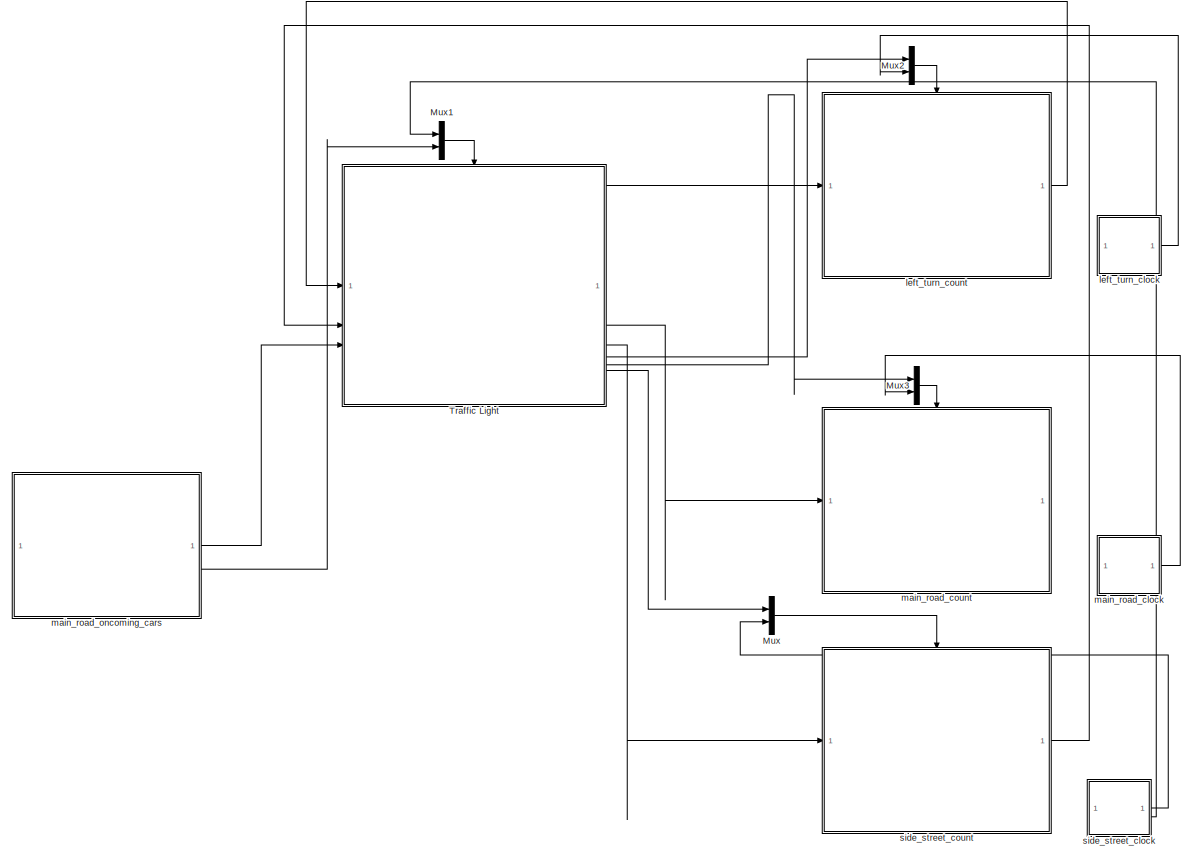
[diagram: root canvas - part 1/2, most of the canvas]
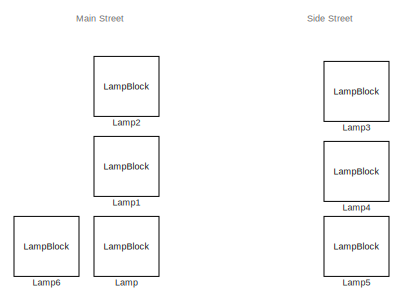
[diagram: root canvas - part 2/2, top right region]
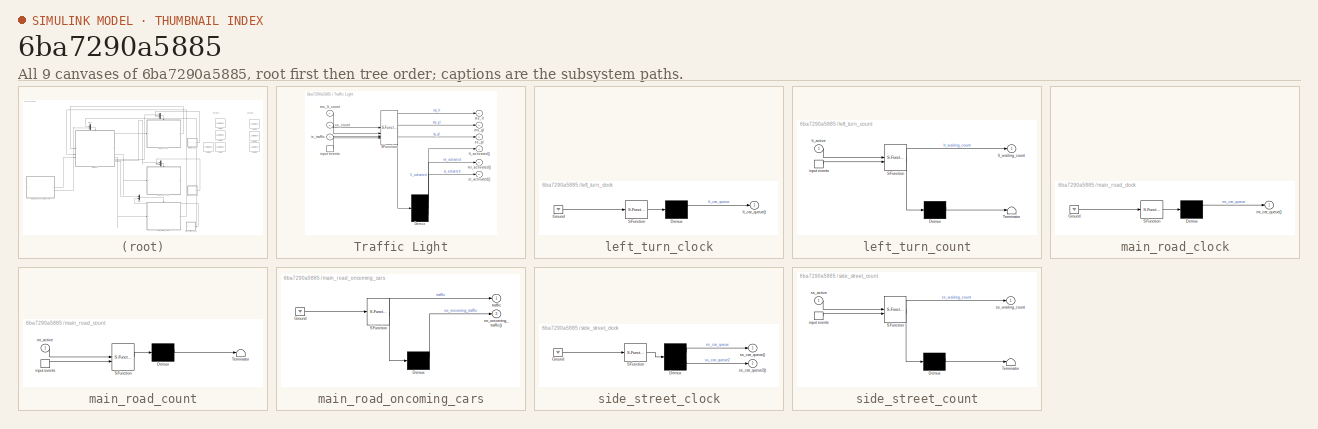
[diagram: thumbnail index - all 9 canvases of the model, root first then tree order]
MODEL slx_6ba7290a5885
KIND model
CONFIG AbsTol = auto
CONFIG EnableMultiTasking = off
CONFIG FixedStep = auto
CONFIG MaxStep = auto
CONFIG MinStep = auto
CONFIG RelTol = 1e-3
CONFIG SampleTimeConstraint = Unconstrained
CONFIG SolverName = VariableStepAuto
CONFIG StartTime = 0.0
CONFIG StopTime = 1000
BLOCK [LampBlock] Lamp
  LabelPosition = Hide
BLOCK [LampBlock] Lamp1
  LabelPosition = Hide
BLOCK [LampBlock] Lamp2
  LabelPosition = Hide
BLOCK [LampBlock] Lamp3
  LabelPosition = Hide
BLOCK [LampBlock] Lamp4
  LabelPosition = Hide
BLOCK [LampBlock] Lamp5
  LabelPosition = Hide
BLOCK [LampBlock] Lamp6
  Icon = TurnSignalLeft
  LabelPosition = Hide
BLOCK [Mux] Mux
  DisplayOption = bar
  Inputs = 2
BLOCK [Mux] Mux1
  DisplayOption = bar
  Inputs = 2
BLOCK [Mux] Mux2
  DisplayOption = bar
  Inputs = 2
BLOCK [Mux] Mux3
  DisplayOption = bar
  Inputs = 2
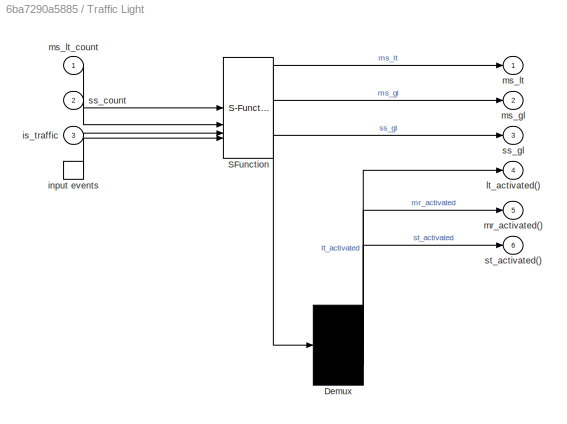
BLOCK [SubSystem] Traffic Light
  ErrorFcn = Stateflow.Translate.translate
  PermitHierarchicalResolution = ExplicitOnly
  SFBlockType = Chart
  TreatAsAtomicUnit = on
BLOCK [Demux] Traffic Light/ Demux 
  Outputs = 3
BLOCK [S-Function] Traffic Light/ SFunction 
  EnableBusSupport = on
  FunctionName = sf_sfun
  PortCounts = [4 4]
  SFcnIsStateOwnerBlock = off
  SFunctionDeploymentMode = off
  Tag = Stateflow S-Function 3
BLOCK [TriggerPort] Traffic Light/input events
  ShowOutputPort = on
  StatesWhenEnabling = held
  TriggerType = function-call
  VariantControl = (inherit)
BLOCK [Inport] Traffic Light/is_traffic
  Port = 3
BLOCK [Outport] Traffic Light/lt_activated()
  Port = 4
BLOCK [Outport] Traffic Light/mr_activated()
  Port = 5
BLOCK [Outport] Traffic Light/ms_gl
  Port = 2
BLOCK [Outport] Traffic Light/ms_lt
BLOCK [Inport] Traffic Light/ms_lt_count
BLOCK [Inport] Traffic Light/ss_count
  Port = 2
BLOCK [Outport] Traffic Light/ss_gl
  Port = 3
BLOCK [Outport] Traffic Light/st_activated()
  Port = 6
BLOCK [SubSystem] left_turn_clock
  ErrorFcn = Stateflow.Translate.translate
  PermitHierarchicalResolution = ExplicitOnly
  SFBlockType = Chart
  TreatAsAtomicUnit = on
BLOCK [Demux] left_turn_clock/ Demux 
  Outputs = 1
BLOCK [Ground] left_turn_clock/ Ground 
BLOCK [S-Function] left_turn_clock/ SFunction 
  EnableBusSupport = on
  FunctionName = sf_sfun
  PortCounts = [1 1]
  SFcnIsStateOwnerBlock = off
  SFunctionDeploymentMode = off
  Tag = Stateflow S-Function 8
BLOCK [Outport] left_turn_clock/lt_car_queue()
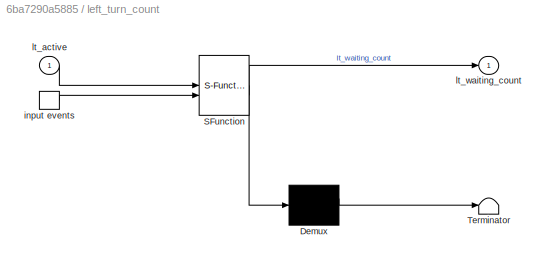
BLOCK [SubSystem] left_turn_count
  ErrorFcn = Stateflow.Translate.translate
  PermitHierarchicalResolution = ExplicitOnly
  SFBlockType = Chart
  TreatAsAtomicUnit = on
BLOCK [Demux] left_turn_count/ Demux 
  Outputs = 1
BLOCK [S-Function] left_turn_count/ SFunction 
  EnableBusSupport = on
  FunctionName = sf_sfun
  PortCounts = [2 2]
  SFcnIsStateOwnerBlock = off
  SFunctionDeploymentMode = off
  Tag = Stateflow S-Function 1
BLOCK [Terminator] left_turn_count/ Terminator 
BLOCK [TriggerPort] left_turn_count/input events
  ShowOutputPort = on
  StatesWhenEnabling = held
  TriggerType = function-call
  VariantControl = (inherit)
BLOCK [Inport] left_turn_count/lt_active
BLOCK [Outport] left_turn_count/lt_waiting_count
BLOCK [SubSystem] main_road_clock
  ErrorFcn = Stateflow.Translate.translate
  PermitHierarchicalResolution = ExplicitOnly
  SFBlockType = Chart
  TreatAsAtomicUnit = on
BLOCK [Demux] main_road_clock/ Demux 
  Outputs = 1
BLOCK [Ground] main_road_clock/ Ground 
BLOCK [S-Function] main_road_clock/ SFunction 
  EnableBusSupport = on
  FunctionName = sf_sfun
  PortCounts = [1 1]
  SFcnIsStateOwnerBlock = off
  SFunctionDeploymentMode = off
  Tag = Stateflow S-Function 7
BLOCK [Outport] main_road_clock/mr_car_queue()
BLOCK [SubSystem] main_road_count
  ErrorFcn = Stateflow.Translate.translate
  PermitHierarchicalResolution = ExplicitOnly
  SFBlockType = Chart
  TreatAsAtomicUnit = on
BLOCK [Demux] main_road_count/ Demux 
  Outputs = 1
BLOCK [S-Function] main_road_count/ SFunction 
  EnableBusSupport = on
  FunctionName = sf_sfun
  PortCounts = [2 1]
  SFcnIsStateOwnerBlock = off
  SFunctionDeploymentMode = off
  Tag = Stateflow S-Function 2
BLOCK [Terminator] main_road_count/ Terminator 
BLOCK [TriggerPort] main_road_count/input events
  ShowOutputPort = on
  StatesWhenEnabling = held
  TriggerType = function-call
  VariantControl = (inherit)
BLOCK [Inport] main_road_count/mr_active
BLOCK [SubSystem] main_road_oncoming_cars
  ErrorFcn = Stateflow.Translate.translate
  PermitHierarchicalResolution = ExplicitOnly
  SFBlockType = Chart
  TreatAsAtomicUnit = on
BLOCK [Demux] main_road_oncoming_cars/ Demux 
  Outputs = 1
BLOCK [Ground] main_road_oncoming_cars/ Ground 
BLOCK [S-Function] main_road_oncoming_cars/ SFunction 
  EnableBusSupport = on
  FunctionName = sf_sfun
  PortCounts = [1 2]
  SFcnIsStateOwnerBlock = off
  SFunctionDeploymentMode = off
  Tag = Stateflow S-Function 6
BLOCK [Outport] main_road_oncoming_cars/no_oncoming_traffic()
  Port = 2
BLOCK [Outport] main_road_oncoming_cars/traffic
BLOCK [SubSystem] side_street_clock
  ErrorFcn = Stateflow.Translate.translate
  PermitHierarchicalResolution = ExplicitOnly
  SFBlockType = Chart
  TreatAsAtomicUnit = on
BLOCK [Demux] side_street_clock/ Demux 
  Outputs = 2
BLOCK [Ground] side_street_clock/ Ground 
BLOCK [S-Function] side_street_clock/ SFunction 
  EnableBusSupport = on
  FunctionName = sf_sfun
  PortCounts = [1 1]
  SFcnIsStateOwnerBlock = off
  SFunctionDeploymentMode = off
  Tag = Stateflow S-Function 5
BLOCK [Outport] side_street_clock/ss_car_queue()
BLOCK [Outport] side_street_clock/ss_car_queue2()
  Port = 2
BLOCK [SubSystem] side_street_count
  ErrorFcn = Stateflow.Translate.translate
  PermitHierarchicalResolution = ExplicitOnly
  SFBlockType = Chart
  TreatAsAtomicUnit = on
BLOCK [Demux] side_street_count/ Demux 
  Outputs = 1
BLOCK [S-Function] side_street_count/ SFunction 
  EnableBusSupport = on
  FunctionName = sf_sfun
  PortCounts = [2 2]
  SFcnIsStateOwnerBlock = off
  SFunctionDeploymentMode = off
  Tag = Stateflow S-Function 4
BLOCK [Terminator] side_street_count/ Terminator 
BLOCK [TriggerPort] side_street_count/input events
  ShowOutputPort = on
  StatesWhenEnabling = held
  TriggerType = function-call
  VariantControl = (inherit)
BLOCK [Inport] side_street_count/ss_active
BLOCK [Outport] side_street_count/ss_waiting_count
ANNOTATION (root): Main Street
ANNOTATION (root): Side Street
LINE Mux1:1 -> Traffic Light:trigger
LINE Mux2:1 -> left_turn_count:trigger
LINE Mux3:1 -> main_road_count:trigger
LINE Mux:1 -> side_street_count:trigger
LINE Traffic Light:1 -> left_turn_count:1
LINE Traffic Light:2 -> main_road_count:1
LINE Traffic Light:3 -> side_street_count:1
LINE Traffic Light:4 -> Mux2:1
LINE Traffic Light:5 -> Mux3:1
LINE Traffic Light:6 -> Mux:1
LINE left_turn_clock:1 -> Mux2:2
LINE left_turn_count:1 -> Traffic Light:1
LINE main_road_clock:1 -> Mux3:2
LINE main_road_oncoming_cars:1 -> Traffic Light:3
LINE main_road_oncoming_cars:2 -> Mux1:2
LINE side_street_clock:1 -> Mux:2
LINE side_street_clock:2 -> Mux1:1
LINE side_street_count:1 -> Traffic Light:2
CHART Traffic Light states=11 transitions=17
  STATE_LABEL 'main_street_left_turn_initial\nms_lt=1; ms_gl=0;\nss_gl=0;'
  STATE_LABEL 'side_street_green_initial\nms_lt=0; ms_gl=0;\nss_gl=1;'
  STATE_LABEL 'main_street_green_initial\nms_lt=0; ms_gl=1;\nss_gl=0;'
  STATE_LABEL 'main_street_green_extendable\nms_lt=0; ms_gl=1;\nss_gl=0;'
  STATE_LABEL 'side_street_yellow\nms_lt=0; ms_gl=0;\nss_gl=2;'
  STATE_LABEL 'main_street_left_turn_yellow\nms_lt=2; ms_gl=0;\nss_gl=0;'
  STATE_LABEL 'ms_green_interruptable\n'
  STATE_LABEL 'side_street_red\nms_lt=0; ms_gl=0;\nss_gl=0;'
  STATE_LABEL 'main_street_left_turn_disabled\nms_lt=0; ms_gl=0;\nss_gl=0;'
  STATE_LABEL 'main_street_yellow\nms_lt=0; ms_gl=2;\nss_gl=0;'
  STATE_LABEL 'main_street_red\nms_lt=0; ms_gl=0;\nss_gl=0;'
CHART side_street_count states=2 transitions=6
  STATE_LABEL 'side_street_active\nss_waiting_count=0;'
  STATE_LABEL 'mr_cars_queueing'
CHART side_street_clock states=1 transitions=2
  STATE_LABEL 'clock_state'
CHART main_road_oncoming_cars states=2 transitions=3
  STATE_LABEL 'no_traffic\ntraffic=0;'
  STATE_LABEL 'oncoming_traffic\ntraffic=1;\n'
CHART main_road_clock states=1 transitions=2
  STATE_LABEL 'clock_state'
CHART left_turn_clock states=1 transitions=2
  STATE_LABEL 'clock_state'
CHART left_turn_count states=2 transitions=6
  STATE_LABEL 'left_turn_active\nlt_waiting_count=0;'
  STATE_LABEL 'lt_cars_queueing'
CHART main_road_count states=2 transitions=6
  STATE_LABEL 'main_road_active\nmr_waiting_count=0;'
  STATE_LABEL 'mr_cars_queueing'
CHART  states=0 transitions=0
CHART  states=0 transitions=0
CHART  states=0 transitions=0
CHART  states=0 transitions=0
CHART  states=0 transitions=0
CHART  states=0 transitions=0
CHART  states=0 transitions=0
CHART  states=0 transitions=0
